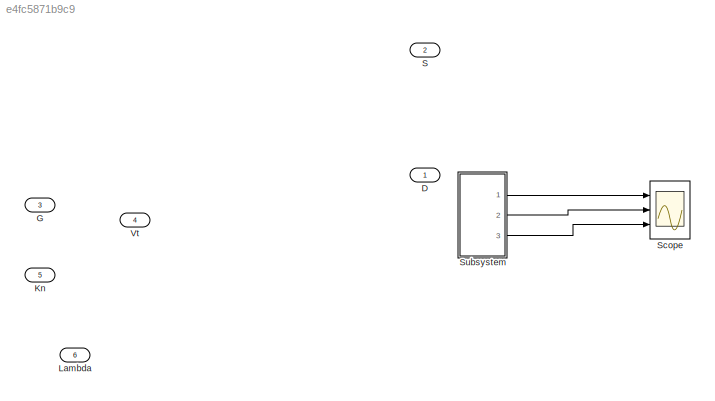
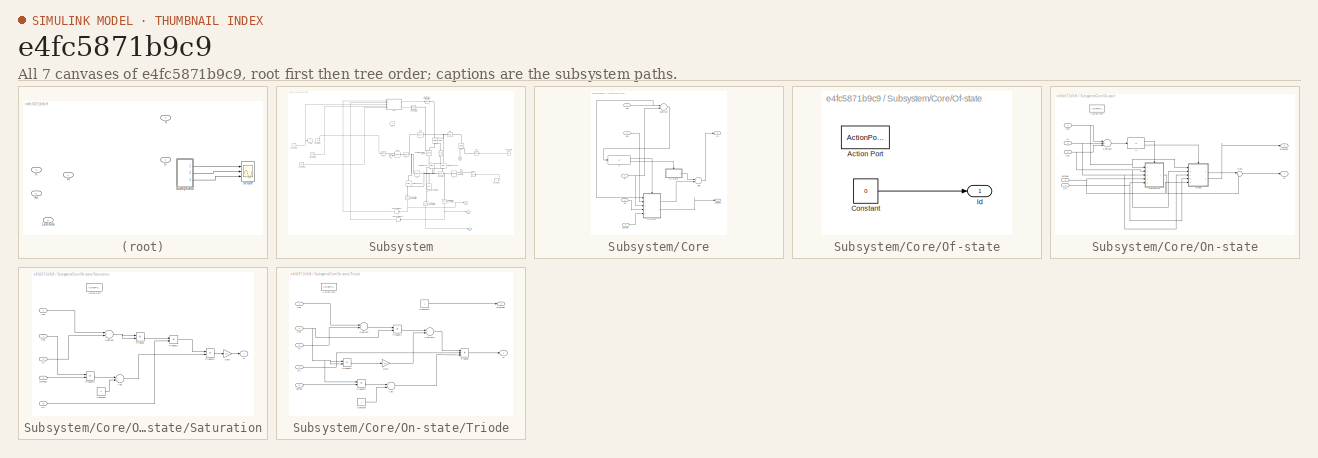
[diagram: thumbnail index - all 7 canvases of the model, root first then tree order]
MODEL slx_e4fc5871b9c9
KIND model
CONFIG AbsTol = auto
CONFIG FixedStep = auto
CONFIG MaxStep = auto
CONFIG MinStep = auto
CONFIG RelTol = 1e-3
CONFIG SampleTimeConstraint = Unconstrained
CONFIG Solver = VariableStepAuto
CONFIG SolverMode = Auto
CONFIG SolverName = VariableStepAuto
CONFIG StartTime = 0.0
CONFIG StopTime = 5
BLOCK [Inport] D
  IconDisplay = Port number
BLOCK [Inport] G
  IconDisplay = Port number
  Port = 3
BLOCK [Inport] Kn
  IconDisplay = Port number
  Port = 5
BLOCK [Inport] Lambda 
  IconDisplay = Port number
  Port = 6
BLOCK [Inport] S
  IconDisplay = Port number
  Port = 2
BLOCK [Scope] Scope
  NumInputPorts = 3
  Ports = [3]
  ScopeSpecificationString = Simulink.scopes.TimeScopeBlockCfg('CurrentConfiguration', extmgr.ConfigurationSet(extmgr.Configuration('Core','General UI',true),extmgr.Configuration('Core','Source UI',true),extmgr.Configuration('Sources','WiredSimulink',true),extmgr.Configuration('Visuals','Time Domain',true,'SerializedDisplays',{struct('MinYLimReal','-2.70396','MaxYLimReal','4.69576','YLabelReal','','MinYLimMag','0.00000','MaxY...<+2761ch>
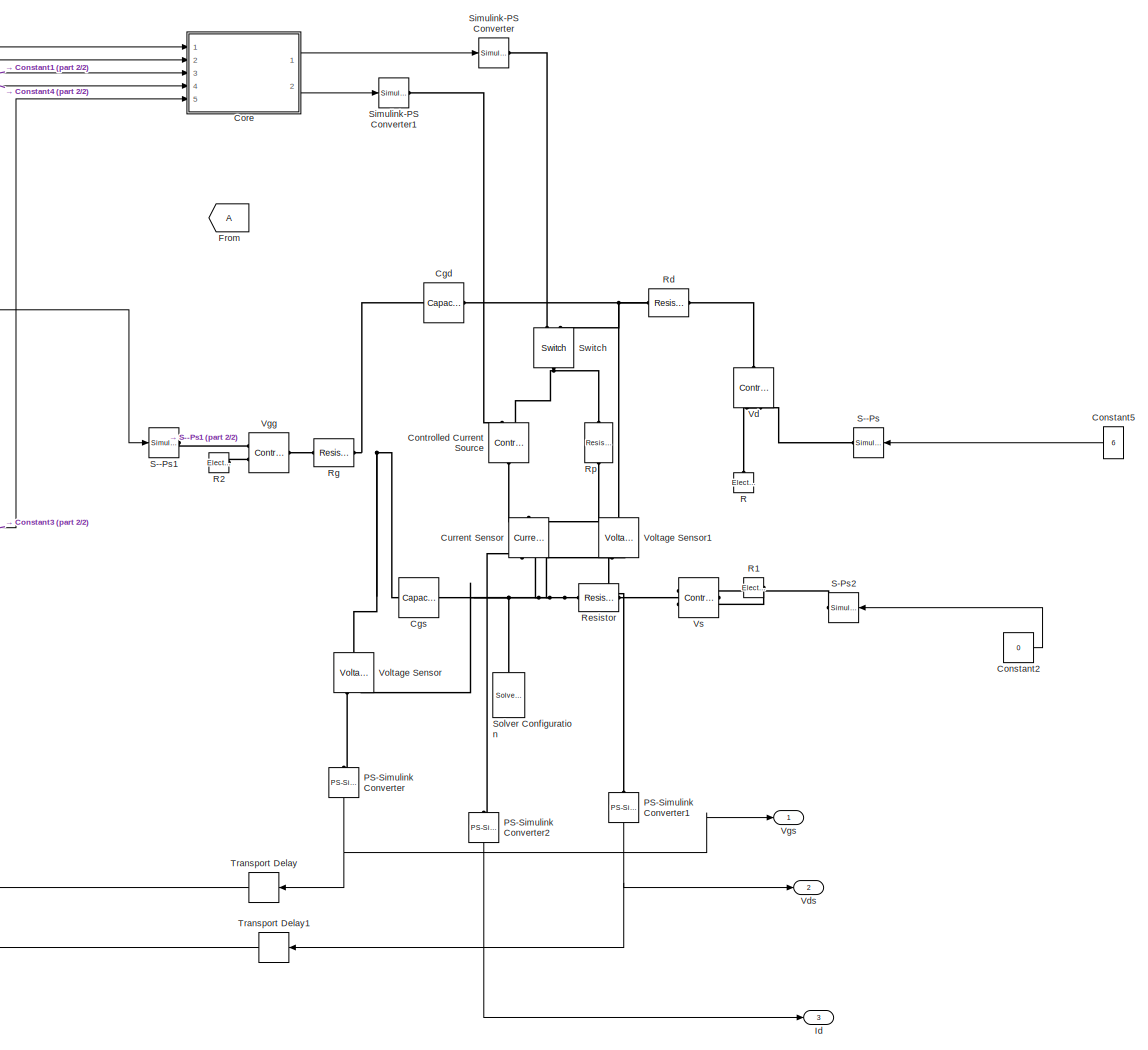
[diagram: Subsystem - part 1/2, center side, full height]
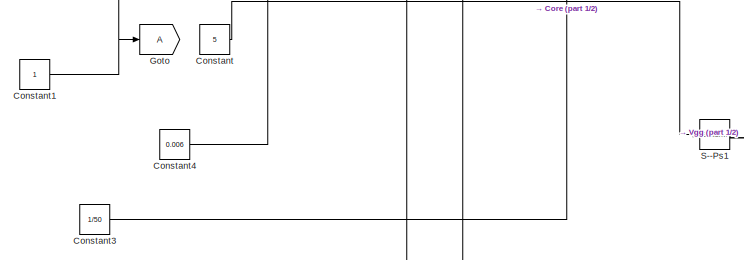
[diagram: Subsystem - part 2/2, middle left region]
BLOCK [SubSystem] Subsystem
  Ports = [0, 3]
  RequestExecContextInheritance = off
  Variant = off
BLOCK [Reference] Subsystem/Cgd  REF=fl_lib/Electrical/Electrical Elements/Capacitor
  Ports = [0, 0, 0, 0, 0, 1, 1]
  SourceBlock = fl_lib/Electrical/Electrical Elements/Capacitor
  SourceType = Capacitor
BLOCK [Reference] Subsystem/Cgs  REF=fl_lib/Electrical/Electrical Elements/Capacitor
  Ports = [0, 0, 0, 0, 0, 1, 1]
  SourceBlock = fl_lib/Electrical/Electrical Elements/Capacitor
  SourceType = Capacitor
BLOCK [Constant] Subsystem/Constant
  Value = 5
BLOCK [Constant] Subsystem/Constant1
BLOCK [Constant] Subsystem/Constant2
  Value = 0
BLOCK [Constant] Subsystem/Constant3
  Value = 1/50
BLOCK [Constant] Subsystem/Constant4
  Value = 0.006
BLOCK [Constant] Subsystem/Constant5
  Value = 6
BLOCK [Reference] Subsystem/Controlled Current Source  REF=fl_lib/Electrical/Electrical Sources/Controlled Current
Source
  Ports = [0, 0, 0, 0, 0, 1, 2]
  SourceBlock = fl_lib/Electrical/Electrical Sources/Controlled Current\nSource
  SourceType = Controlled Current\nSource
BLOCK [SubSystem] Subsystem/Core
  Ports = [5, 2]
  RequestExecContextInheritance = off
  Variant = off
BLOCK [Sum] Subsystem/Core/Add
  InputSameDT = off
  OutDataTypeStr = Inherit: Inherit via internal rule
  Ports = [2, 1]
  SaturateOnIntegerOverflow = off
BLOCK [Outport] Subsystem/Core/Boolean
  IconDisplay = Port number
BLOCK [Outport] Subsystem/Core/Id
  IconDisplay = Port number
  Port = 2
BLOCK [If] Subsystem/Core/If
  Ports = [1, 2]
BLOCK [Inport] Subsystem/Core/Kn
  IconDisplay = Port number
  Port = 4
BLOCK [SubSystem] Subsystem/Core/Of-state
  Ports = [0, 1, 0, 0, 0, 0, 0, 1]
  RequestExecContextInheritance = off
  TreatAsAtomicUnit = on
  Variant = off
BLOCK [ActionPort] Subsystem/Core/Of-state/Action Port
  ActionType = else
BLOCK [Constant] Subsystem/Core/Of-state/Constant
  Value = 0
BLOCK [Outport] Subsystem/Core/Of-state/Id
  IconDisplay = Port number
BLOCK [SubSystem] Subsystem/Core/On-state
  Ports = [5, 2, 0, 0, 0, 0, 0, 1]
  RequestExecContextInheritance = off
  TreatAsAtomicUnit = on
  Variant = off
BLOCK [ActionPort] Subsystem/Core/On-state/Action Port
  ActionType = then
BLOCK [Outport] Subsystem/Core/On-state/Boolean
  IconDisplay = Port number
  Port = 2
BLOCK [Outport] Subsystem/Core/On-state/Id
  IconDisplay = Port number
BLOCK [If] Subsystem/Core/On-state/If
  Ports = [1, 2]
BLOCK [Inport] Subsystem/Core/On-state/Kn
  IconDisplay = Port number
  Port = 4
BLOCK [SubSystem] Subsystem/Core/On-state/Saturation
  Ports = [5, 1, 0, 0, 0, 0, 0, 1]
  RequestExecContextInheritance = off
  TreatAsAtomicUnit = on
  Variant = off
BLOCK [ActionPort] Subsystem/Core/On-state/Saturation/Action Port
  ActionType = then
BLOCK [Sum] Subsystem/Core/On-state/Saturation/Add
  InputSameDT = off
  OutDataTypeStr = Inherit: Inherit via internal rule
  Ports = [2, 1]
  SaturateOnIntegerOverflow = off
BLOCK [Constant] Subsystem/Core/On-state/Saturation/Constant
BLOCK [Gain] Subsystem/Core/On-state/Saturation/Gain
  Gain = 1/2
  OutDataTypeStr = Inherit: Inherit via internal rule
  ParamDataTypeStr = Inherit: Inherit via internal rule
  SaturateOnIntegerOverflow = off
BLOCK [Outport] Subsystem/Core/On-state/Saturation/Id
  IconDisplay = Port number
BLOCK [Inport] Subsystem/Core/On-state/Saturation/Kn
  IconDisplay = Port number
  Port = 5
BLOCK [Inport] Subsystem/Core/On-state/Saturation/Lambda
  IconDisplay = Port number
  Port = 4
BLOCK [Product] Subsystem/Core/On-state/Saturation/Product
  InputSameDT = off
  OutDataTypeStr = Inherit: Inherit via internal rule
  Ports = [2, 1]
  RndMeth = Floor
  SaturateOnIntegerOverflow = off
BLOCK [Product] Subsystem/Core/On-state/Saturation/Product1
  InputSameDT = off
  OutDataTypeStr = Inherit: Inherit via internal rule
  Ports = [2, 1]
  RndMeth = Floor
  SaturateOnIntegerOverflow = off
BLOCK [Product] Subsystem/Core/On-state/Saturation/Product2
  InputSameDT = off
  OutDataTypeStr = Inherit: Inherit via internal rule
  Ports = [2, 1]
  RndMeth = Floor
  SaturateOnIntegerOverflow = off
BLOCK [Product] Subsystem/Core/On-state/Saturation/Product3
  InputSameDT = off
  OutDataTypeStr = Inherit: Inherit via internal rule
  Ports = [2, 1]
  RndMeth = Floor
  SaturateOnIntegerOverflow = off
BLOCK [Sum] Subsystem/Core/On-state/Saturation/Subtract
  InputSameDT = off
  Inputs = +-
  OutDataTypeStr = Inherit: Inherit via internal rule
  Ports = [2, 1]
  SaturateOnIntegerOverflow = off
BLOCK [Inport] Subsystem/Core/On-state/Saturation/Vds
  IconDisplay = Port number
  Port = 2
BLOCK [Inport] Subsystem/Core/On-state/Saturation/Vgs
  IconDisplay = Port number
BLOCK [Inport] Subsystem/Core/On-state/Saturation/Vt 
  IconDisplay = Port number
  Port = 3
BLOCK [Sum] Subsystem/Core/On-state/Subtract
  InputSameDT = off
  Inputs = -++
  OutDataTypeStr = Inherit: Inherit via internal rule
  Ports = [3, 1]
  SaturateOnIntegerOverflow = off
BLOCK [Sum] Subsystem/Core/On-state/Sum
  IconShape = round
  InputSameDT = off
  Inputs = |++
  OutDataTypeStr = Inherit: Inherit via internal rule
  Ports = [2, 1]
  SaturateOnIntegerOverflow = off
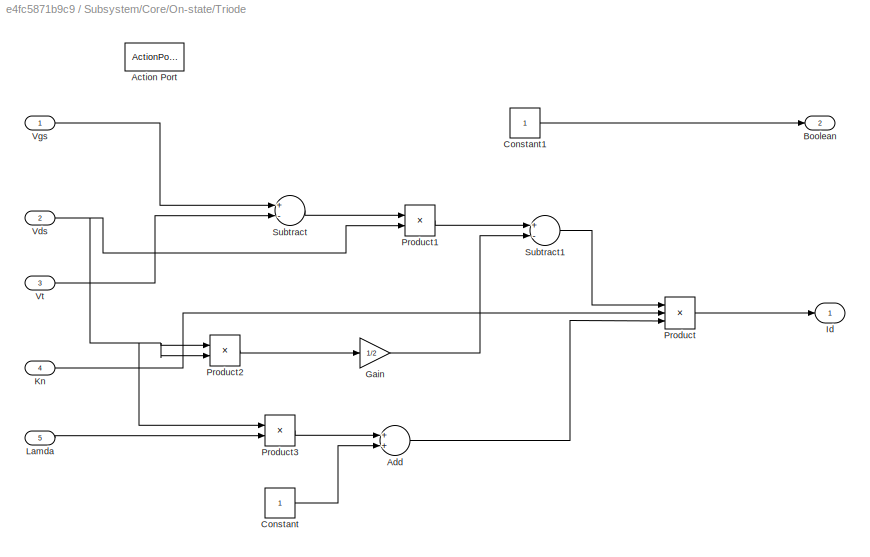
BLOCK [SubSystem] Subsystem/Core/On-state/Triode
  Ports = [5, 2, 0, 0, 0, 0, 0, 1]
  RequestExecContextInheritance = off
  TreatAsAtomicUnit = on
  Variant = off
BLOCK [ActionPort] Subsystem/Core/On-state/Triode/Action Port
  ActionType = else
BLOCK [Sum] Subsystem/Core/On-state/Triode/Add
  InputSameDT = off
  OutDataTypeStr = Inherit: Inherit via internal rule
  Ports = [2, 1]
  SaturateOnIntegerOverflow = off
BLOCK [Outport] Subsystem/Core/On-state/Triode/Boolean
  IconDisplay = Port number
  Port = 2
BLOCK [Constant] Subsystem/Core/On-state/Triode/Constant
BLOCK [Constant] Subsystem/Core/On-state/Triode/Constant1
BLOCK [Gain] Subsystem/Core/On-state/Triode/Gain
  Gain = 1/2
  OutDataTypeStr = Inherit: Inherit via internal rule
  ParamDataTypeStr = Inherit: Inherit via internal rule
  SaturateOnIntegerOverflow = off
BLOCK [Outport] Subsystem/Core/On-state/Triode/Id
  IconDisplay = Port number
BLOCK [Inport] Subsystem/Core/On-state/Triode/Kn
  IconDisplay = Port number
  Port = 4
BLOCK [Inport] Subsystem/Core/On-state/Triode/Lamda
  IconDisplay = Port number
  Port = 5
BLOCK [Product] Subsystem/Core/On-state/Triode/Product
  InputSameDT = off
  Inputs = 3
  OutDataTypeStr = Inherit: Inherit via internal rule
  Ports = [3, 1]
  RndMeth = Floor
  SaturateOnIntegerOverflow = off
BLOCK [Product] Subsystem/Core/On-state/Triode/Product1
  InputSameDT = off
  OutDataTypeStr = Inherit: Inherit via internal rule
  Ports = [2, 1]
  RndMeth = Floor
  SaturateOnIntegerOverflow = off
BLOCK [Product] Subsystem/Core/On-state/Triode/Product2
  InputSameDT = off
  OutDataTypeStr = Inherit: Inherit via internal rule
  Ports = [2, 1]
  RndMeth = Floor
  SaturateOnIntegerOverflow = off
BLOCK [Product] Subsystem/Core/On-state/Triode/Product3
  InputSameDT = off
  OutDataTypeStr = Inherit: Inherit via internal rule
  Ports = [2, 1]
  RndMeth = Floor
  SaturateOnIntegerOverflow = off
BLOCK [Sum] Subsystem/Core/On-state/Triode/Subtract
  InputSameDT = off
  Inputs = +-
  OutDataTypeStr = Inherit: Inherit via internal rule
  Ports = [2, 1]
  SaturateOnIntegerOverflow = off
BLOCK [Sum] Subsystem/Core/On-state/Triode/Subtract1
  InputSameDT = off
  Inputs = +-
  OutDataTypeStr = Inherit: Inherit via internal rule
  Ports = [2, 1]
  SaturateOnIntegerOverflow = off
BLOCK [Inport] Subsystem/Core/On-state/Triode/Vds
  IconDisplay = Port number
  Port = 2
BLOCK [Inport] Subsystem/Core/On-state/Triode/Vgs
  IconDisplay = Port number
BLOCK [Inport] Subsystem/Core/On-state/Triode/Vt
  IconDisplay = Port number
  Port = 3
BLOCK [Inport] Subsystem/Core/On-state/Vds
  IconDisplay = Port number
  Port = 2
BLOCK [Inport] Subsystem/Core/On-state/Vgs
  IconDisplay = Port number
BLOCK [Inport] Subsystem/Core/On-state/Vt
  IconDisplay = Port number
  Port = 3
BLOCK [Inport] Subsystem/Core/On-state/lambda
  IconDisplay = Port number
  Port = 5
BLOCK [Sum] Subsystem/Core/Subtract
  InputSameDT = off
  Inputs = +-
  OutDataTypeStr = Inherit: Inherit via internal rule
  Ports = [2, 1]
  SaturateOnIntegerOverflow = off
BLOCK [Inport] Subsystem/Core/Vds
  IconDisplay = Port number
  Port = 2
BLOCK [Inport] Subsystem/Core/Vgs
  IconDisplay = Port number
BLOCK [Inport] Subsystem/Core/Vt
  IconDisplay = Port number
  Port = 3
BLOCK [Inport] Subsystem/Core/lambda
  IconDisplay = Port number
  Port = 5
BLOCK [Reference] Subsystem/Current Sensor  REF=fl_lib/Electrical/Electrical Sensors/Current Sensor
  Ports = [0, 0, 0, 0, 0, 1, 2]
  SourceBlock = fl_lib/Electrical/Electrical Sensors/Current Sensor
  SourceType = Current Sensor
BLOCK [From] Subsystem/From
BLOCK [Goto] Subsystem/Goto
BLOCK [Outport] Subsystem/Id
  IconDisplay = Port number
  Port = 3
BLOCK [Reference] Subsystem/PS-Simulink Converter  REF=nesl_utility/PS-Simulink
Converter
  Ports = [0, 1, 0, 0, 0, 1]
  SourceBlock = nesl_utility/PS-Simulink\nConverter
  SourceType = PS-Simulink\nConverter
BLOCK [Reference] Subsystem/PS-Simulink Converter1  REF=nesl_utility/PS-Simulink
Converter
  Ports = [0, 1, 0, 0, 0, 1]
  SourceBlock = nesl_utility/PS-Simulink\nConverter
  SourceType = PS-Simulink\nConverter
BLOCK [Reference] Subsystem/PS-Simulink Converter2  REF=nesl_utility/PS-Simulink
Converter
  Ports = [0, 1, 0, 0, 0, 1]
  SourceBlock = nesl_utility/PS-Simulink\nConverter
  SourceType = PS-Simulink\nConverter
BLOCK [Reference] Subsystem/R  REF=fl_lib/Electrical/Electrical Elements/Electrical Reference
  Ports = [0, 0, 0, 0, 0, 1]
  SourceBlock = fl_lib/Electrical/Electrical Elements/Electrical Reference
  SourceType = Electrical Reference
BLOCK [Reference] Subsystem/R1  REF=fl_lib/Electrical/Electrical Elements/Electrical Reference
  Ports = [0, 0, 0, 0, 0, 1]
  SourceBlock = fl_lib/Electrical/Electrical Elements/Electrical Reference
  SourceType = Electrical Reference
BLOCK [Reference] Subsystem/R2  REF=fl_lib/Electrical/Electrical Elements/Electrical Reference
  Ports = [0, 0, 0, 0, 0, 1]
  SourceBlock = fl_lib/Electrical/Electrical Elements/Electrical Reference
  SourceType = Electrical Reference
BLOCK [Reference] Subsystem/Rd  REF=fl_lib/Electrical/Electrical Elements/Resistor
  Ports = [0, 0, 0, 0, 0, 1, 1]
  SourceBlock = fl_lib/Electrical/Electrical Elements/Resistor
  SourceType = Resistor
BLOCK [Reference] Subsystem/Resistor  REF=fl_lib/Electrical/Electrical Elements/Resistor
  Ports = [0, 0, 0, 0, 0, 1, 1]
  SourceBlock = fl_lib/Electrical/Electrical Elements/Resistor
  SourceType = Resistor
BLOCK [Reference] Subsystem/Rg  REF=fl_lib/Electrical/Electrical Elements/Resistor
  Ports = [0, 0, 0, 0, 0, 1, 1]
  SourceBlock = fl_lib/Electrical/Electrical Elements/Resistor
  SourceType = Resistor
BLOCK [Reference] Subsystem/Rp  REF=fl_lib/Electrical/Electrical Elements/Resistor
  Ports = [0, 0, 0, 0, 0, 1, 1]
  SourceBlock = fl_lib/Electrical/Electrical Elements/Resistor
  SourceType = Resistor
BLOCK [Reference] Subsystem/S--Ps  REF=nesl_utility/Simulink-PS
Converter
  Ports = [1, 0, 0, 0, 0, 0, 1]
  SourceBlock = nesl_utility/Simulink-PS\nConverter
  SourceType = Simulink-PS\nConverter
BLOCK [Reference] Subsystem/S--Ps1  REF=nesl_utility/Simulink-PS
Converter
  Ports = [1, 0, 0, 0, 0, 0, 1]
  SourceBlock = nesl_utility/Simulink-PS\nConverter
  SourceType = Simulink-PS\nConverter
BLOCK [Reference] Subsystem/S-Ps2  REF=nesl_utility/Simulink-PS
Converter
  Ports = [1, 0, 0, 0, 0, 0, 1]
  SourceBlock = nesl_utility/Simulink-PS\nConverter
  SourceType = Simulink-PS\nConverter
BLOCK [Reference] Subsystem/Simulink-PS Converter  REF=nesl_utility/Simulink-PS
Converter
  Ports = [1, 0, 0, 0, 0, 0, 1]
  SourceBlock = nesl_utility/Simulink-PS\nConverter
  SourceType = Simulink-PS\nConverter
BLOCK [Reference] Subsystem/Simulink-PS Converter1  REF=nesl_utility/Simulink-PS
Converter
  Ports = [1, 0, 0, 0, 0, 0, 1]
  SourceBlock = nesl_utility/Simulink-PS\nConverter
  SourceType = Simulink-PS\nConverter
BLOCK [Reference] Subsystem/Solver Configuration  REF=nesl_utility/Solver
Configuration
  Ports = [0, 0, 0, 0, 0, 0, 1]
  SourceBlock = nesl_utility/Solver\nConfiguration
  SourceType = Solver\nConfiguration
BLOCK [Reference] Subsystem/Switch  REF=fl_lib/Electrical/Electrical Elements/Switch
  Ports = [0, 0, 0, 0, 0, 1, 2]
  SourceBlock = fl_lib/Electrical/Electrical Elements/Switch
  SourceType = Switch
BLOCK [TransportDelay] Subsystem/Transport Delay
  Ports = [1, 1]
BLOCK [TransportDelay] Subsystem/Transport Delay1
  Ports = [1, 1]
BLOCK [Reference] Subsystem/Vd  REF=fl_lib/Electrical/Electrical Sources/Controlled Voltage
Source
  Ports = [0, 0, 0, 0, 0, 1, 2]
  SourceBlock = fl_lib/Electrical/Electrical Sources/Controlled Voltage\nSource
  SourceType = Controlled Voltage\nSource
BLOCK [Outport] Subsystem/Vds
  IconDisplay = Port number
  Port = 2
BLOCK [Reference] Subsystem/Vgg  REF=fl_lib/Electrical/Electrical Sources/Controlled Voltage
Source
  Ports = [0, 0, 0, 0, 0, 1, 2]
  SourceBlock = fl_lib/Electrical/Electrical Sources/Controlled Voltage\nSource
  SourceType = Controlled Voltage\nSource
BLOCK [Outport] Subsystem/Vgs
  IconDisplay = Port number
BLOCK [Reference] Subsystem/Voltage Sensor  REF=fl_lib/Electrical/Electrical Sensors/Voltage Sensor
  Ports = [0, 0, 0, 0, 0, 1, 2]
  SourceBlock = fl_lib/Electrical/Electrical Sensors/Voltage Sensor
  SourceType = Voltage Sensor
BLOCK [Reference] Subsystem/Voltage Sensor1  REF=fl_lib/Electrical/Electrical Sensors/Voltage Sensor
  Ports = [0, 0, 0, 0, 0, 1, 2]
  SourceBlock = fl_lib/Electrical/Electrical Sensors/Voltage Sensor
  SourceType = Voltage Sensor
BLOCK [Reference] Subsystem/Vs  REF=fl_lib/Electrical/Electrical Sources/Controlled Voltage
Source
  Ports = [0, 0, 0, 0, 0, 1, 2]
  SourceBlock = fl_lib/Electrical/Electrical Sources/Controlled Voltage\nSource
  SourceType = Controlled Voltage\nSource
BLOCK [Inport] Vt
  IconDisplay = Port number
  Port = 4
NET Subsystem/Constant1:1 -> Subsystem/Core:3, Subsystem/Goto:1
LINE Subsystem/Constant2:1 -> Subsystem/S-Ps2:1
LINE Subsystem/Constant3:1 -> Subsystem/Core:5
LINE Subsystem/Constant4:1 -> Subsystem/Core:4
LINE Subsystem/Constant5:1 -> Subsystem/S--Ps:1
LINE Subsystem/Constant:1 -> Subsystem/S--Ps1:1
LINE Subsystem/Core/Add:1 -> Subsystem/Core/Id:1
LINE Subsystem/Core/If:1 -> Subsystem/Core/On-state:ifaction
LINE Subsystem/Core/If:2 -> Subsystem/Core/Of-state:ifaction
LINE Subsystem/Core/Kn:1 -> Subsystem/Core/On-state:4
LINE Subsystem/Core/Of-state/Constant:1 -> Subsystem/Core/Of-state/Id:1
LINE Subsystem/Core/Of-state:1 -> Subsystem/Core/Add:1
LINE Subsystem/Core/On-state/If:1 -> Subsystem/Core/On-state/Saturation:ifaction
LINE Subsystem/Core/On-state/If:2 -> Subsystem/Core/On-state/Triode:ifaction
NET Subsystem/Core/On-state/Kn:1 -> Subsystem/Core/On-state/Saturation:5, Subsystem/Core/On-state/Triode:4
LINE Subsystem/Core/On-state/Saturation/Add:1 -> Subsystem/Core/On-state/Saturation/Product2:2
LINE Subsystem/Core/On-state/Saturation/Constant:1 -> Subsystem/Core/On-state/Saturation/Add:2
LINE Subsystem/Core/On-state/Saturation/Gain:1 -> Subsystem/Core/On-state/Saturation/Id:1
LINE Subsystem/Core/On-state/Saturation/Kn:1 -> Subsystem/Core/On-state/Saturation/Product1:2
LINE Subsystem/Core/On-state/Saturation/Lambda:1 -> Subsystem/Core/On-state/Saturation/Product3:2
LINE Subsystem/Core/On-state/Saturation/Product1:1 -> Subsystem/Core/On-state/Saturation/Product2:1
LINE Subsystem/Core/On-state/Saturation/Product2:1 -> Subsystem/Core/On-state/Saturation/Gain:1
LINE Subsystem/Core/On-state/Saturation/Product3:1 -> Subsystem/Core/On-state/Saturation/Add:1
LINE Subsystem/Core/On-state/Saturation/Product:1 -> Subsystem/Core/On-state/Saturation/Product1:1
NET Subsystem/Core/On-state/Saturation/Subtract:1 -> Subsystem/Core/On-state/Saturation/Product:1, Subsystem/Core/On-state/Saturation/Product:2
LINE Subsystem/Core/On-state/Saturation/Vds:1 -> Subsystem/Core/On-state/Saturation/Product3:1
LINE Subsystem/Core/On-state/Saturation/Vgs:1 -> Subsystem/Core/On-state/Saturation/Subtract:1
LINE Subsystem/Core/On-state/Saturation/Vt :1 -> Subsystem/Core/On-state/Saturation/Subtract:2
LINE Subsystem/Core/On-state/Saturation:1 -> Subsystem/Core/On-state/Sum:2
LINE Subsystem/Core/On-state/Subtract:1 -> Subsystem/Core/On-state/If:1
LINE Subsystem/Core/On-state/Sum:1 -> Subsystem/Core/On-state/Id:1
LINE Subsystem/Core/On-state/Triode/Add:1 -> Subsystem/Core/On-state/Triode/Product:3
LINE Subsystem/Core/On-state/Triode/Constant1:1 -> Subsystem/Core/On-state/Triode/Boolean:1
LINE Subsystem/Core/On-state/Triode/Constant:1 -> Subsystem/Core/On-state/Triode/Add:2
LINE Subsystem/Core/On-state/Triode/Gain:1 -> Subsystem/Core/On-state/Triode/Subtract1:2
LINE Subsystem/Core/On-state/Triode/Kn:1 -> Subsystem/Core/On-state/Triode/Product:2
LINE Subsystem/Core/On-state/Triode/Lamda:1 -> Subsystem/Core/On-state/Triode/Product3:2
LINE Subsystem/Core/On-state/Triode/Product1:1 -> Subsystem/Core/On-state/Triode/Subtract1:1
LINE Subsystem/Core/On-state/Triode/Product2:1 -> Subsystem/Core/On-state/Triode/Gain:1
LINE Subsystem/Core/On-state/Triode/Product3:1 -> Subsystem/Core/On-state/Triode/Add:1
LINE Subsystem/Core/On-state/Triode/Product:1 -> Subsystem/Core/On-state/Triode/Id:1
LINE Subsystem/Core/On-state/Triode/Subtract1:1 -> Subsystem/Core/On-state/Triode/Product:1
LINE Subsystem/Core/On-state/Triode/Subtract:1 -> Subsystem/Core/On-state/Triode/Product1:1
NET Subsystem/Core/On-state/Triode/Vds:1 -> Subsystem/Core/On-state/Triode/Product1:2, Subsystem/Core/On-state/Triode/Product2:1, Subsystem/Core/On-state/Triode/Product2:2, Subsystem/Core/On-state/Triode/Product3:1
LINE Subsystem/Core/On-state/Triode/Vgs:1 -> Subsystem/Core/On-state/Triode/Subtract:1
LINE Subsystem/Core/On-state/Triode/Vt:1 -> Subsystem/Core/On-state/Triode/Subtract:2
LINE Subsystem/Core/On-state/Triode:1 -> Subsystem/Core/On-state/Sum:1
LINE Subsystem/Core/On-state/Triode:2 -> Subsystem/Core/On-state/Boolean:1
NET Subsystem/Core/On-state/Vds:1 -> Subsystem/Core/On-state/Saturation:2, Subsystem/Core/On-state/Subtract:3, Subsystem/Core/On-state/Triode:2
NET Subsystem/Core/On-state/Vgs:1 -> Subsystem/Core/On-state/Saturation:1, Subsystem/Core/On-state/Subtract:1, Subsystem/Core/On-state/Triode:1
NET Subsystem/Core/On-state/Vt:1 -> Subsystem/Core/On-state/Saturation:3, Subsystem/Core/On-state/Subtract:2, Subsystem/Core/On-state/Triode:3
NET Subsystem/Core/On-state/lambda:1 -> Subsystem/Core/On-state/Saturation:4, Subsystem/Core/On-state/Triode:5
LINE Subsystem/Core/On-state:1 -> Subsystem/Core/Add:2
LINE Subsystem/Core/On-state:2 -> Subsystem/Core/Boolean:1
LINE Subsystem/Core/Subtract:1 -> Subsystem/Core/If:1
LINE Subsystem/Core/Vds:1 -> Subsystem/Core/On-state:2
NET Subsystem/Core/Vgs:1 -> Subsystem/Core/On-state:1, Subsystem/Core/Subtract:1
NET Subsystem/Core/Vt:1 -> Subsystem/Core/On-state:3, Subsystem/Core/Subtract:2
LINE Subsystem/Core/lambda:1 -> Subsystem/Core/On-state:5
LINE Subsystem/Core:1 -> Subsystem/Simulink-PS Converter:1
LINE Subsystem/Core:2 -> Subsystem/Simulink-PS Converter1:1
NET Subsystem/PS-Simulink Converter1:1 -> Subsystem/Transport Delay1:1, Subsystem/Vds:1
LINE Subsystem/PS-Simulink Converter2:1 -> Subsystem/Id:1
NET Subsystem/PS-Simulink Converter:1 -> Subsystem/Transport Delay:1, Subsystem/Vgs:1
LINE Subsystem/Transport Delay1:1 -> Subsystem/Core:2
LINE Subsystem/Transport Delay:1 -> Subsystem/Core:1
LINE Subsystem:1 -> Scope:1
LINE Subsystem:2 -> Scope:2
LINE Subsystem:3 -> Scope:3
PNET net1: Subsystem/Cgd:LConn1 -- Subsystem/Rd:RConn1 -- Subsystem/Switch:RConn2 -- Subsystem/Voltage Sensor1:LConn1
PNET net2: Subsystem/Cgd:RConn1 -- Subsystem/Cgs:LConn1 -- Subsystem/Rg:RConn1 -- Subsystem/Voltage Sensor:LConn1
PNET net3: Subsystem/Cgs:RConn1 -- Subsystem/Current Sensor:RConn2 -- Subsystem/Resistor:LConn1 -- Subsystem/Solver Configuration:RConn1 -- Subsystem/Voltage Sensor1:RConn2 -- Subsystem/Voltage Sensor:RConn2
PNET net4: Subsystem/Controlled Current Source:LConn1 -- Subsystem/Current Sensor:LConn1 -- Subsystem/Rp:RConn1
PLINE Subsystem/Controlled Current Source:RConn1 -- Subsystem/Simulink-PS Converter1:RConn1
PNET net5: Subsystem/Controlled Current Source:RConn2 -- Subsystem/Rp:LConn1 -- Subsystem/Switch:LConn1
PLINE Subsystem/Current Sensor:RConn1 -- Subsystem/PS-Simulink Converter2:LConn1
PLINE Subsystem/PS-Simulink Converter1:LConn1 -- Subsystem/Voltage Sensor1:RConn1
PLINE Subsystem/PS-Simulink Converter:LConn1 -- Subsystem/Voltage Sensor:RConn1
PLINE Subsystem/R1:LConn1 -- Subsystem/Vs:RConn2
PLINE Subsystem/R2:LConn1 -- Subsystem/Vgg:RConn2
PLINE Subsystem/R:LConn1 -- Subsystem/Vd:RConn2
PLINE Subsystem/Rd:LConn1 -- Subsystem/Vd:LConn1
PLINE Subsystem/Resistor:RConn1 -- Subsystem/Vs:LConn1
PLINE Subsystem/Rg:LConn1 -- Subsystem/Vgg:LConn1
PLINE Subsystem/S--Ps1:RConn1 -- Subsystem/Vgg:RConn1
PLINE Subsystem/S--Ps:RConn1 -- Subsystem/Vd:RConn1
PLINE Subsystem/S-Ps2:RConn1 -- Subsystem/Vs:RConn1
PLINE Subsystem/Simulink-PS Converter:RConn1 -- Subsystem/Switch:RConn1
note: NET lines group one-source signal fan-out (src -> all destinations, sorted); 1:1 wires keep LINE; PNET lines group multi-terminal physical nets as a canonical sorted terminal list (undirected conserving connections); 2-terminal nets keep the pairwise PLINE form
